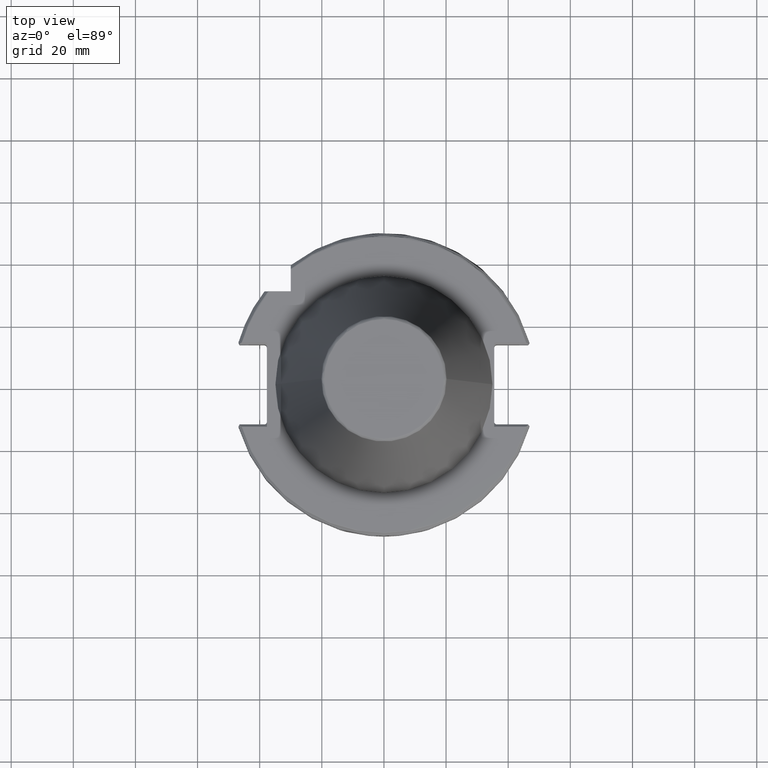
[diagram: clean part render]
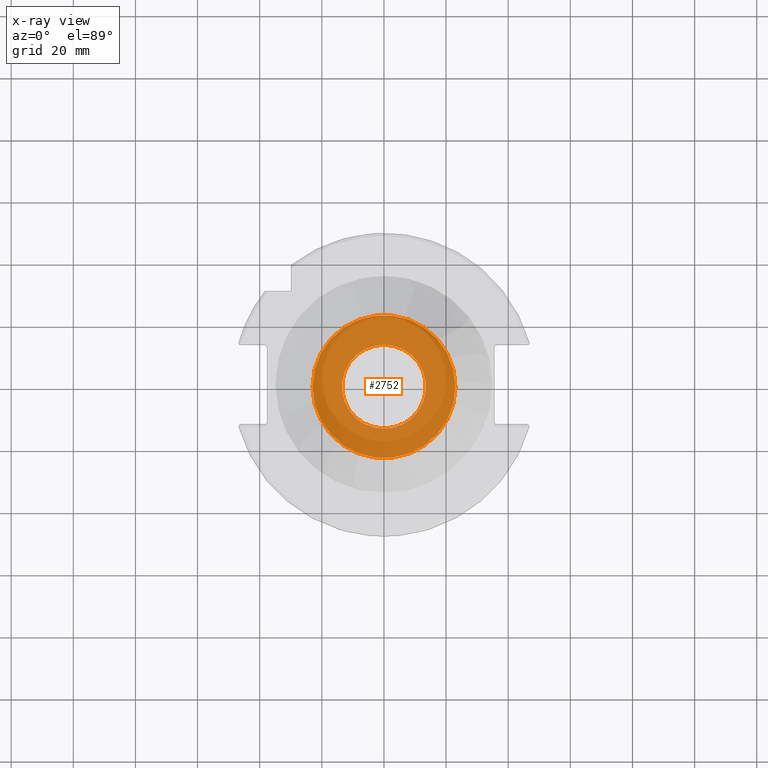
[diagram: x-ray — body ghosted, one internal face saturated and labeled with its STEP entity id]
A machine part, top view, then the same camera in x-ray: the body is ghosted and one INTERNAL B-rep face — a face not visible from any outside direction — is saturated and labeled: STEP entity #2752.
In plain terms, the highlighted planar face has unit normal (0, 0, 1).
Its self-contained STEP definition (entity closure, byte-faithful):
#51 = EDGE_CURVE ( 'NONE', #212, #2667, #2684, .T. ) ;
#212 = VERTEX_POINT ( 'NONE', #401 ) ;
#401 = CARTESIAN_POINT ( 'NONE',  ( 22.99999999999995700, 0.0000000000000000000, -45.00000000000004300 ) ) ;
#444 = EDGE_CURVE ( 'NONE', #4942, #2849, #2266, .T. ) ;
#476 = AXIS2_PLACEMENT_3D ( 'NONE', #4659, #4677, #4697 ) ;
#764 = EDGE_CURVE ( 'NONE', #2667, #212, #1955, .T. ) ;
#1204 = FACE_OUTER_BOUND ( 'NONE', #4455, .T. ) ;
#1371 = AXIS2_PLACEMENT_3D ( 'NONE', #3813, #3824, #3819 ) ;
#1729 = ORIENTED_EDGE ( 'NONE', *, *, #764, .F. ) ;
#1955 = CIRCLE ( 'NONE', #1371, 22.99999999999995700 ) ;
#2016 = AXIS2_PLACEMENT_3D ( 'NONE', #2207, #2215, #2231 ) ;
#2040 = CIRCLE ( 'NONE', #476, 13.50000000000000000 ) ;
#2107 = AXIS2_PLACEMENT_3D ( 'NONE', #5157, #5179, #5192 ) ;
#2207 = CARTESIAN_POINT ( 'NONE',  ( 0.0000000000000000000, -1.569102708567606400E-014, -45.00000000000001400 ) ) ;
#2215 = DIRECTION ( 'NONE',  ( 0.0000000000000000000, -5.139921410301651800E-016, 1.000000000000000000 ) ) ;
#2231 = DIRECTION ( 'NONE',  ( 0.0000000000000000000, -1.000000000000000000, -5.139921410301650800E-016 ) ) ;
#2266 = CIRCLE ( 'NONE', #2016, 13.50000000000000000 ) ;
#2642 = CARTESIAN_POINT ( 'NONE',  ( 1.653273178848926900E-015, 13.49999999999998400, -45.00000000000000700 ) ) ;
#2667 = VERTEX_POINT ( 'NONE', #3277 ) ;
#2684 = CIRCLE ( 'NONE', #2107, 22.99999999999995700 ) ;
#2752 = ADVANCED_FACE ( 'NONE', ( #3438, #1204 ), #3782, .F. ) ;
#2820 = EDGE_CURVE ( 'NONE', #2849, #4942, #2040, .T. ) ;
#2849 = VERTEX_POINT ( 'NONE', #4866 ) ;
#2932 = ORIENTED_EDGE ( 'NONE', *, *, #444, .T. ) ;
#3277 = CARTESIAN_POINT ( 'NONE',  ( -22.99999999999995700, 2.877919977996277600E-015, -45.00000000000004300 ) ) ;
#3438 = FACE_BOUND ( 'NONE', #4333, .T. ) ;
#3782 = PLANE ( 'NONE',  #4555 ) ;
#3813 = CARTESIAN_POINT ( 'NONE',  ( 0.0000000000000000000, 0.0000000000000000000, -45.00000000000004300 ) ) ;
#3819 = DIRECTION ( 'NONE',  ( 1.000000000000000000, 0.0000000000000000000, 0.0000000000000000000 ) ) ;
#3824 = DIRECTION ( 'NONE',  ( 0.0000000000000000000, -0.0000000000000000000, 1.000000000000000000 ) ) ;
#3892 = CARTESIAN_POINT ( 'NONE',  ( -23.27600000000000000, -23.27600000000000000, -45.00000000000000000 ) ) ;
#4057 = DIRECTION ( 'NONE',  ( 0.0000000000000000000, 0.0000000000000000000, 1.000000000000000000 ) ) ;
#4073 = DIRECTION ( 'NONE',  ( 1.000000000000000000, 0.0000000000000000000, 0.0000000000000000000 ) ) ;
#4333 = EDGE_LOOP ( 'NONE', ( #5496, #2932 ) ) ;
#4455 = EDGE_LOOP ( 'NONE', ( #5234, #1729 ) ) ;
#4555 = AXIS2_PLACEMENT_3D ( 'NONE', #3892, #4057, #4073 ) ;
#4659 = CARTESIAN_POINT ( 'NONE',  ( 0.0000000000000000000, -1.569102708567606400E-014, -45.00000000000001400 ) ) ;
#4677 = DIRECTION ( 'NONE',  ( 0.0000000000000000000, -5.139921410301651800E-016, 1.000000000000000000 ) ) ;
#4697 = DIRECTION ( 'NONE',  ( 0.0000000000000000000, -1.000000000000000000, -5.139921410301650800E-016 ) ) ;
#4866 = CARTESIAN_POINT ( 'NONE',  ( 0.0000000000000000000, -13.50000000000001600, -45.00000000000002100 ) ) ;
#4942 = VERTEX_POINT ( 'NONE', #2642 ) ;
#5157 = CARTESIAN_POINT ( 'NONE',  ( 0.0000000000000000000, 0.0000000000000000000, -45.00000000000004300 ) ) ;
#5179 = DIRECTION ( 'NONE',  ( 0.0000000000000000000, -0.0000000000000000000, 1.000000000000000000 ) ) ;
#5192 = DIRECTION ( 'NONE',  ( 1.000000000000000000, 0.0000000000000000000, 0.0000000000000000000 ) ) ;
#5234 = ORIENTED_EDGE ( 'NONE', *, *, #51, .F. ) ;
#5496 = ORIENTED_EDGE ( 'NONE', *, *, #2820, .T. ) ;